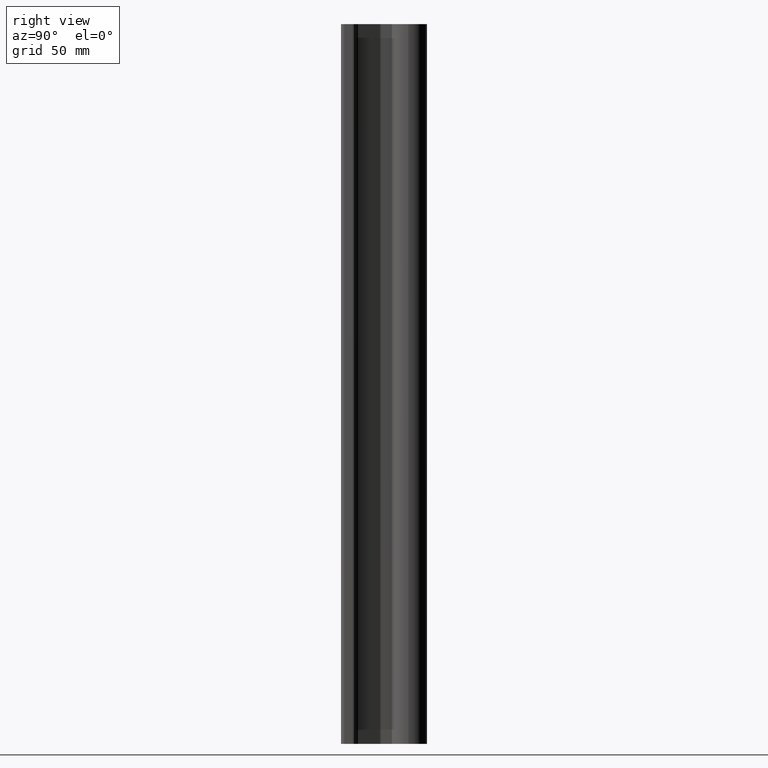
[diagram: clean part render]
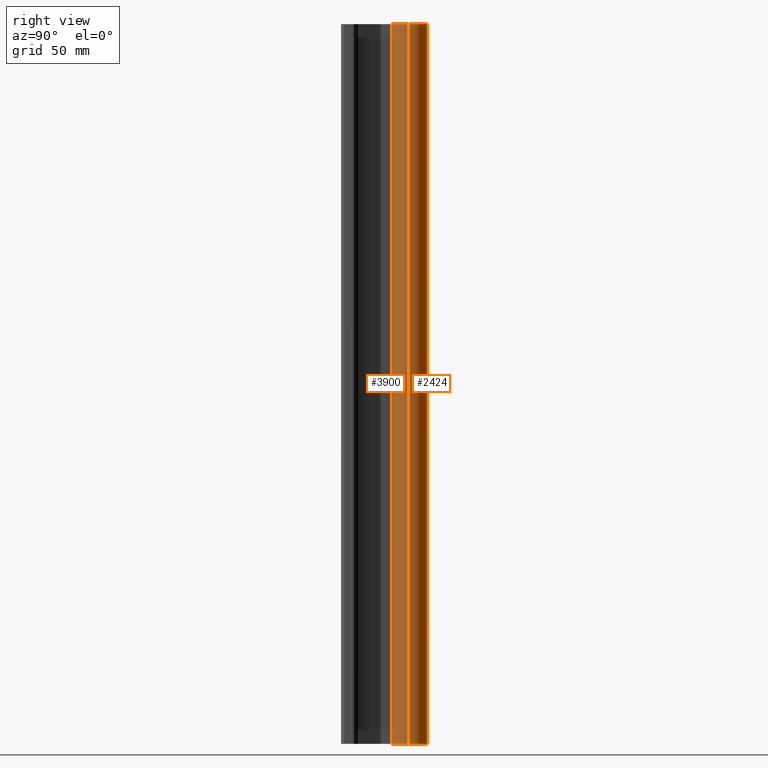
[diagram: same view with one multi-face feature highlighted, each face labeled with its STEP entity id]
A machine part, right view. The highlighted faces form ONE feature: a constant-radius fillet chain: 2 tangent blend faces with common blend radius 7.9375 mm. The faces share edges in the B-rep.
Their STEP definitions:
[1] entity #3900 (Cylinder):
#26 = B_SPLINE_CURVE_WITH_KNOTS ( 'NONE', 3,
 ( #3919, #3263, #6905, #351, #4456, #6239, #1460, #786, #4540, #1421, #3339, #5782, #858, #7544, #3961, #3297, #2747, #5669, #312, #7499, #941, #7464, #2056, #195, #5068, #2635, #5187, #7587, #6323, #2125 ),
 .UNSPECIFIED., .F., .F.,
 ( 4, 2, 2, 2, 2, 2, 2, 2, 2, 2, 2, 2, 2, 2, 4 ),
 ( 0.007508452367745338182, 0.008446756409244972688, 0.008915908429994788206, 0.009385060450744603724, 0.009854212471494417508, 0.01032336449224423303, 0.01079251651299404854, 0.01126166853374386406, 0.01173082055449367958, 0.01219997257524349510, 0.01313827661674312614, 0.01360742863749294165, 0.01407658065824275717, 0.01454573267899257269, 0.01501488469974238821 ),
 .UNSPECIFIED. ) ;
#64 = CARTESIAN_POINT ( 'NONE',  ( -0.08209296015616003583, 0.8234358842663974665, -5.047396330322444946 ) ) ;
#195 = CARTESIAN_POINT ( 'NONE',  ( 0.04720408787751076418, 0.8160425046014818662, -1.081519172924102490 ) ) ;
#206 = VERTEX_POINT ( 'NONE', #3529 ) ;
#291 = CARTESIAN_POINT ( 'NONE',  ( 0.006248130838341097240, 0.8125000000000004441, -9.094000000000004746 ) ) ;
#312 = CARTESIAN_POINT ( 'NONE',  ( 0.08915249567970547073, 0.8254769057181347014, -1.030420745336931621 ) ) ;
#351 = CARTESIAN_POINT ( 'NONE',  ( 0.04174469723951397537, 0.8152482140724262027, -0.9155545634229914631 ) ) ;
#360 = CARTESIAN_POINT ( 'NONE',  ( -0.07510743548941764547, 0.8215319702436250093, -9.057822074742654550 ) ) ;
#442 = CARTESIAN_POINT ( 'NONE',  ( 0.02448571958776037810, 0.8134019009169751735, -9.090964061280905284 ) ) ;
#447 = CARTESIAN_POINT ( 'NONE',  ( 0.04724576803369165412, 0.8160490580171795294, -8.918505836333379122 ) ) ;
#455 = CARTESIAN_POINT ( 'NONE',  ( -0.08209296015615998032, 0.8234358842663970224, -1.047396330322443836 ) ) ;
#495 = CARTESIAN_POINT ( 'NONE',  ( -0.08917577085278130533, 0.8254836531408548117, -0.9696361719165590420 ) ) ;
#518 = ORIENTED_EDGE ( 'NONE', *, *, #6420, .T. ) ;
#525 = CARTESIAN_POINT ( 'NONE',  ( 0.04182498381696470036, 0.8152589941655236094, -9.084406068499557563 ) ) ;
#545 = CARTESIAN_POINT ( 'NONE',  ( -0.06218625147563033168, 0.8187181843221623678, -5.070753091280488789 ) ) ;
#549 = CARTESIAN_POINT ( 'NONE',  ( 0.06212367018058409518, 0.8187050417628202181, -4.929188540159190168 ) ) ;
#583 = EDGE_CURVE ( 'NONE', #5415, #2526, #3723, .T. ) ;
#615 = CARTESIAN_POINT ( 'NONE',  ( -1.045985132074415829E-16, 0.8125000000000001110, -5.093999999999999417 ) ) ;
#665 = CARTESIAN_POINT ( 'NONE',  ( 0.07079793436574485788, 0.8205930284507833017, -4.937860916235941922 ) ) ;
#674 = EDGE_CURVE ( 'NONE', #3864, #6700, #6227, .T. ) ;
#741 = DIRECTION ( 'NONE',  ( 0.000000000000000000, 0.000000000000000000, 1.000000000000000000 ) ) ;
#786 = CARTESIAN_POINT ( 'NONE',  ( 0.07079793436574456644, 0.8205930284507831907, -0.9378609162359411444 ) ) ;
#811 = CARTESIAN_POINT ( 'NONE',  ( -0.3125000000000000000, 1.125000000000000222, -11.99999999999999822 ) ) ;
#858 = CARTESIAN_POINT ( 'NONE',  ( 0.09095975716276100131, 0.8260281468790587889, -0.9755038062707838131 ) ) ;
#925 = AXIS2_PLACEMENT_3D ( 'NONE', #3380, #5302, #1579 ) ;
#941 = CARTESIAN_POINT ( 'NONE',  ( 0.07510757727267905470, 0.8215320241521085753, -1.057821730578282660 ) ) ;
#943 = B_SPLINE_CURVE_WITH_KNOTS ( 'NONE', 3,
 ( #6846, #3907, #6888, #6547, #3992, #7732, #972, #4065, #3395, #5323, #455, #1603, #5842, #6506, #2926, #3473, #5209, #4720, #495, #2891, #2268, #7076, #4601, #7691, #3515, #4109, #1636, #6999, #7117, #6957 ),
 .UNSPECIFIED., .F., .F.,
 ( 4, 2, 2, 2, 2, 2, 2, 2, 2, 2, 2, 2, 2, 2, 4 ),
 ( 2.827876233278883370E-19, 0.0004692782729840807633, 0.0009385565459681613097, 0.001407834818952241693, 0.001877113091936322186, 0.002815669637904491193, 0.003284947910888575372, 0.003754226183872660418, 0.004223504456856744596, 0.004692782729840828775, 0.005631339275808998866, 0.006100617548793083045, 0.006569895821777167223, 0.007039174094761253136, 0.007508452367745338182 ),
 .UNSPECIFIED. ) ;
#957 = EDGE_LOOP ( 'NONE', ( #518, #3695 ) ) ;
#964 = VERTEX_POINT ( 'NONE', #2792 ) ;
#972 = CARTESIAN_POINT ( 'NONE',  ( -0.04719947330657274509, 0.8160417891568694237, -1.081521885796496774 ) ) ;
#1031 = CARTESIAN_POINT ( 'NONE',  ( -0.03044423128482891608, 0.8139338484542095742, -9.089146305765225975 ) ) ;
#1066 = CARTESIAN_POINT ( 'NONE',  ( -0.06218625147563035249, 0.8187181843221625899, -9.070753091280488789 ) ) ;
#1073 = CARTESIAN_POINT ( 'NONE',  ( 0.09337431156350314843, 0.8267734345808207541, -8.987550949017309776 ) ) ;
#1105 = CARTESIAN_POINT ( 'NONE',  ( -0.04719947330657309204, 0.8160417891568693127, -9.081521885796497884 ) ) ;
#1109 = CARTESIAN_POINT ( 'NONE',  ( 0.04720408787751050744, 0.8160425046014818662, -9.081519172924101824 ) ) ;
#1145 = CARTESIAN_POINT ( 'NONE',  ( 0.07472214623426198798, 0.8215447097984076574, -8.942643660028952723 ) ) ;
#1165 = CARTESIAN_POINT ( 'NONE',  ( -0.02453868079496402885, 0.8134055614502636589, -4.909048392997517496 ) ) ;
#1169 = CARTESIAN_POINT ( 'NONE',  ( 0.07472214623426201574, 0.8215447097984078795, -4.942643660028956276 ) ) ;
#1213 = CARTESIAN_POINT ( 'NONE',  ( 2.338341473806063536E-15, 0.8125000000000001110, -4.905999999999999694 ) ) ;
#1217 = CARTESIAN_POINT ( 'NONE',  ( 0.01239471305407809781, 0.8126871810120626094, -5.093382985584919531 ) ) ;
#1223 = EDGE_CURVE ( 'NONE', #206, #6339, #4767, .T. ) ;
#1252 = CARTESIAN_POINT ( 'NONE',  ( -0.05739900808181976760, 0.8177734638920224342, -4.925309107502875428 ) ) ;
#1319 = CARTESIAN_POINT ( 'NONE',  ( 0.3125000000000000000, 1.125000000000000222, -11.99999999999999822 ) ) ;
#1331 = CARTESIAN_POINT ( 'NONE',  ( 2.338341473811032571E-15, 0.8125000000000001110, -0.9060000000000000275 ) ) ;
#1421 = CARTESIAN_POINT ( 'NONE',  ( 0.08150333686740518502, 0.8232953126504902741, -0.9527733660716006803 ) ) ;
#1460 = CARTESIAN_POINT ( 'NONE',  ( 0.06212367018058380375, 0.8187050417628198851, -0.9291885401591875038 ) ) ;
#1462 = DIRECTION ( 'NONE',  ( 1.000000000000000000, 0.000000000000000000, 0.000000000000000000 ) ) ;
#1473 = DIRECTION ( 'NONE',  ( 1.000000000000000000, 0.000000000000000000, 0.000000000000000000 ) ) ;
#1554 = CARTESIAN_POINT ( 'NONE',  ( -0.09339241607760490060, 0.8267790747123383577, -9.012338790927183041 ) ) ;
#1567 = CIRCLE ( 'NONE', #7011, 0.3125000000000000000 ) ;
#1579 = DIRECTION ( 'NONE',  ( 1.000000000000000000, 0.000000000000000000, 0.000000000000000000 ) ) ;
#1593 = CARTESIAN_POINT ( 'NONE',  ( -1.080651164257120767E-16, 0.8125000000000001110, -9.093999999999999417 ) ) ;
#1603 = CARTESIAN_POINT ( 'NONE',  ( -0.08914055491288604138, 0.8254733877079193372, -1.030452882107137258 ) ) ;
#1636 = CARTESIAN_POINT ( 'NONE',  ( -0.02453868079496407048, 0.8134055614502636589, -0.9090483929975167188 ) ) ;
#1670 = CARTESIAN_POINT ( 'NONE',  ( 0.09400044720055691916, 0.8269728771968642977, -9.006188737062908345 ) ) ;
#1703 = CARTESIAN_POINT ( 'NONE',  ( -0.02453868079496425089, 0.8134055614502636589, -8.909048392997515720 ) ) ;
#1709 = CARTESIAN_POINT ( 'NONE',  ( 0.08440922261781196034, 0.8241055286361974597, -8.958172225124982901 ) ) ;
#1710 = VERTEX_POINT ( 'NONE', #1331 ) ;
#1748 = CARTESIAN_POINT ( 'NONE',  ( 0.01231323883885350988, 0.8124999999999998890, -8.905999999999998806 ) ) ;
#1756 = CARTESIAN_POINT ( 'NONE',  ( -0.006249812255970017306, 0.8125000000000003331, -5.093999999999999417 ) ) ;
#1760 = CARTESIAN_POINT ( 'NONE',  ( 0.09098059252350355897, 0.8260344883912750236, -5.024426775340547380 ) ) ;
#1797 = EDGE_CURVE ( 'NONE', #7013, #1710, #943, .T. ) ;
#1989 = FACE_BOUND ( 'NONE', #4482, .T. ) ;
#2056 = CARTESIAN_POINT ( 'NONE',  ( 0.05739462601868267067, 0.8177723697655944202, -1.074695772107617353 ) ) ;
#2125 = CARTESIAN_POINT ( 'NONE',  ( 1.146594018805965782E-17, 0.8125000000000001110, -1.094000000000000083 ) ) ;
#2181 = CARTESIAN_POINT ( 'NONE',  ( -0.09096390808720972165, 0.8260294013101278088, -8.975514245131954283 ) ) ;
#2268 = CARTESIAN_POINT ( 'NONE',  ( -0.07512422930621723283, 0.8215342271043933886, -0.9421824476986193631 ) ) ;
#2301 = CARTESIAN_POINT ( 'NONE',  ( -0.08205196841644292471, 0.8234238652493768296, -8.952496367178270020 ) ) ;
#2307 = CARTESIAN_POINT ( 'NONE',  ( 0.07510757727267844408, 0.8215320241521085753, -9.057821730578282882 ) ) ;
#2319 = CARTESIAN_POINT ( 'NONE',  ( -0.04719947330657309204, 0.8160417891568693127, -5.081521885796496107 ) ) ;
#2327 = EDGE_LOOP ( 'NONE', ( #6879, #6726 ) ) ;
#2360 = CARTESIAN_POINT ( 'NONE',  ( -0.03044423128482890220, 0.8139338484542095742, -5.089146305765224199 ) ) ;
#2526 = VERTEX_POINT ( 'NONE', #4015 ) ;
#2635 = CARTESIAN_POINT ( 'NONE',  ( 0.03048761765259820275, 0.8139383901274355182, -1.089130347473297400 ) ) ;
#2747 = CARTESIAN_POINT ( 'NONE',  ( 0.09339431365803435581, 0.8267796996786788144, -1.012314127894822890 ) ) ;
#2792 = CARTESIAN_POINT ( 'NONE',  ( 2.338341473806063536E-15, 0.8125000000000001110, -4.905999999999999694 ) ) ;
#2795 = CARTESIAN_POINT ( 'NONE',  ( -0.08914055491288608302, 0.8254733877079195592, -9.030452882107139700 ) ) ;
#2891 = CARTESIAN_POINT ( 'NONE',  ( -0.08205196841644323003, 0.8234238652493767185, -0.9524963671782694652 ) ) ;
#2915 = CARTESIAN_POINT ( 'NONE',  ( -0.01238818596634522380, 0.8126871738412412283, -9.093382963279672992 ) ) ;
#2926 = CARTESIAN_POINT ( 'NONE',  ( -0.09399715238152347996, 0.8269718379867129210, -1.006214888037960886 ) ) ;
#2950 = CARTESIAN_POINT ( 'NONE',  ( -0.006158276210661175858, 0.8125000000000003331, -8.906000000000002359 ) ) ;
#2972 = CARTESIAN_POINT ( 'NONE',  ( -0.09400282774607446323, 0.8269736280383976901, -4.993871552814814763 ) ) ;
#2977 = CARTESIAN_POINT ( 'NONE',  ( 0.09399955230915864324, 0.8269725949415090982, -4.993797685430720890 ) ) ;
#3018 = CARTESIAN_POINT ( 'NONE',  ( 0.04174469723951405864, 0.8152482140724260917, -4.915554563422992018 ) ) ;
#3053 = CARTESIAN_POINT ( 'NONE',  ( 0.07510757727267843020, 0.8215320241521085753, -5.057821730578285546 ) ) ;
#3100 = CARTESIAN_POINT ( 'NONE',  ( 0.08915249567970554012, 0.8254769057181348124, -5.030420745336932065 ) ) ;
#3229 = B_SPLINE_CURVE_WITH_KNOTS ( 'NONE', 3,
 ( #1593, #5833, #2915, #4053, #1031, #6578, #1105, #3460, #1066, #360, #3502, #2795, #5274, #1554, #5230, #7644, #7752, #2181, #7679, #2301, #3533, #4632, #7026, #4753, #4673, #7148, #1703, #4139, #2950, #4020 ),
 .UNSPECIFIED., .F., .F.,
 ( 4, 2, 2, 2, 2, 2, 2, 2, 2, 2, 2, 2, 2, 2, 4 ),
 ( 2.665239564959767993E-18, 0.0004692782729840856964, 0.0009385565459681685738, 0.001407834818952251451, 0.001877113091936334112, 0.002815669637904500301, 0.003284947910888583178, 0.003754226183872666055, 0.004223504456856748933, 0.004692782729840832244, 0.005631339275809000601, 0.006100617548793083912, 0.006569895821777166356, 0.007039174094761249667, 0.007508452367745332978 ),
 .UNSPECIFIED. ) ;
#3263 = CARTESIAN_POINT ( 'NONE',  ( 0.01231323883885351855, 0.8125000000000003331, -0.9060000000000002496 ) ) ;
#3274 = FACE_BOUND ( 'NONE', #2327, .T. ) ;
#3297 = CARTESIAN_POINT ( 'NONE',  ( 0.09400044720055693304, 0.8269728771968641867, -1.006188737062911231 ) ) ;
#3339 = CARTESIAN_POINT ( 'NONE',  ( 0.08440922261781221014, 0.8241055286361979038, -0.9581722251249868982 ) ) ;
#3380 = CARTESIAN_POINT ( 'NONE',  ( 0.000000000000000000, 1.125000000000000222, 0.000000000000000000 ) ) ;
#3395 = CARTESIAN_POINT ( 'NONE',  ( -0.06218625147563049821, 0.8187181843221625899, -1.070753091280487013 ) ) ;
#3460 = CARTESIAN_POINT ( 'NONE',  ( -0.05739126467442233481, 0.8177717313350275630, -9.074698399469506072 ) ) ;
#3464 = CARTESIAN_POINT ( 'NONE',  ( 2.338341473826934034E-15, 0.8125000000000001110, -8.906000000000000583 ) ) ;
#3473 = CARTESIAN_POINT ( 'NONE',  ( -0.09400282774607450487, 0.8269736280383979121, -0.9938715528148166500 ) ) ;
#3475 = CARTESIAN_POINT ( 'NONE',  ( -1.045985132074415829E-16, 0.8125000000000001110, -5.093999999999999417 ) ) ;
#3502 = CARTESIAN_POINT ( 'NONE',  ( -0.08209296015615999420, 0.8234358842663974665, -9.047396330322445834 ) ) ;
#3515 = CARTESIAN_POINT ( 'NONE',  ( -0.04173497841402686731, 0.8152469103071935397, -0.9155498031650619595 ) ) ;
#3529 = CARTESIAN_POINT ( 'NONE',  ( 2.338341473826934034E-15, 0.8125000000000001110, -8.906000000000000583 ) ) ;
#3533 = CARTESIAN_POINT ( 'NONE',  ( -0.07512422930621692752, 0.8215342271043933886, -8.942182447698618475 ) ) ;
#3551 = CARTESIAN_POINT ( 'NONE',  ( -0.01238818596634522207, 0.8126871738412414503, -5.093382963279673881 ) ) ;
#3583 = CARTESIAN_POINT ( 'NONE',  ( 0.09095975716276109846, 0.8260281468790587889, -8.975503806270783258 ) ) ;
#3602 = CARTESIAN_POINT ( 'NONE',  ( 0.06218734984264769755, 0.8187184119934811655, -5.070752093200542987 ) ) ;
#3644 = CARTESIAN_POINT ( 'NONE',  ( 0.08150333686740557360, 0.8232953126504904962, -4.952773366071601124 ) ) ;
#3674 = CARTESIAN_POINT ( 'NONE',  ( -0.06210710162732828443, 0.8187016540781720808, -4.929173890949760661 ) ) ;
#3695 = ORIENTED_EDGE ( 'NONE', *, *, #1223, .T. ) ;
#3723 = LINE ( 'NONE', #3767, #6355 ) ;
#3726 = CARTESIAN_POINT ( 'NONE',  ( 0.05739462601868246250, 0.8177723697655946422, -5.074695772107620684 ) ) ;
#3767 = CARTESIAN_POINT ( 'NONE',  ( 0.3125000000000000000, 1.125000000000000222, -11.99999999999999822 ) ) ;
#3769 = CARTESIAN_POINT ( 'NONE',  ( 0.04182498381696469342, 0.8152589941655234984, -5.084406068499561115 ) ) ;
#3795 = CARTESIAN_POINT ( 'NONE',  ( 1.146594018805965782E-17, 0.8125000000000001110, -1.094000000000000083 ) ) ;
#3864 = VERTEX_POINT ( 'NONE', #4961 ) ;
#3893 = B_SPLINE_CURVE_WITH_KNOTS ( 'NONE', 3,
 ( #4199, #5583, #6709, #3018, #6121, #6630, #549, #665, #1169, #3644, #4330, #7372, #6087, #4977, #2977, #6745, #5410, #1760, #3100, #5538, #3053, #3602, #3726, #6672, #3769, #6163, #6049, #1217, #7824, #7252 ),
 .UNSPECIFIED., .F., .F.,
 ( 4, 2, 2, 2, 2, 2, 2, 2, 2, 2, 2, 2, 2, 2, 4 ),
 ( 0.007508452367745332111, 0.008446756409244922381, 0.008915908429994724022, 0.009385060450744527397, 0.009854212471494329037, 0.01032336449224413241, 0.01079251651299393405, 0.01126166853374373569, 0.01173082055449353907, 0.01219997257524334244, 0.01313827661674302205, 0.01360742863749286186, 0.01407658065824270166, 0.01454573267899254146, 0.01501488469974238127 ),
 .UNSPECIFIED. ) ;
#3895 = FACE_OUTER_BOUND ( 'NONE', #5074, .T. ) ;
#3900 = ADVANCED_FACE ( 'NONE', ( #3895, #3274, #1989, #5716 ), #4507, .T. ) ;
#3907 = CARTESIAN_POINT ( 'NONE',  ( -0.006249812255970039858, 0.8125000000000000000, -1.093999999999999861 ) ) ;
#3919 = CARTESIAN_POINT ( 'NONE',  ( 2.338341473811032571E-15, 0.8125000000000001110, -0.9060000000000000275 ) ) ;
#3961 = CARTESIAN_POINT ( 'NONE',  ( 0.09399955230915864324, 0.8269725949415089872, -0.9937976854307205565 ) ) ;
#3967 = CIRCLE ( 'NONE', #925, 0.3125000000000000000 ) ;
#3992 = CARTESIAN_POINT ( 'NONE',  ( -0.03044423128482850668, 0.8139338484542096852, -1.089146305765224199 ) ) ;
#4015 = CARTESIAN_POINT ( 'NONE',  ( 0.3125000000000000000, 1.125000000000000222, 0.000000000000000000 ) ) ;
#4020 = CARTESIAN_POINT ( 'NONE',  ( 2.338341473826934034E-15, 0.8125000000000001110, -8.906000000000000583 ) ) ;
#4053 = CARTESIAN_POINT ( 'NONE',  ( -0.02445328354005015664, 0.8133996061316386417, -9.090971874260890928 ) ) ;
#4065 = CARTESIAN_POINT ( 'NONE',  ( -0.05739126467442198787, 0.8177717313350273409, -1.074698399469502297 ) ) ;
#4101 = CARTESIAN_POINT ( 'NONE',  ( 0.09339431365803423091, 0.8267796996786783703, -9.012314127894820004 ) ) ;
#4109 = CARTESIAN_POINT ( 'NONE',  ( -0.03040333002857185593, 0.8139301967071819188, -0.9108412556624257972 ) ) ;
#4112 = ORIENTED_EDGE ( 'NONE', *, *, #583, .T. ) ;
#4113 = CARTESIAN_POINT ( 'NONE',  ( -0.09339241607760492836, 0.8267790747123385797, -5.012338790927184817 ) ) ;
#4139 = CARTESIAN_POINT ( 'NONE',  ( -0.01239589557352069847, 0.8126867233638430665, -8.906615400389453541 ) ) ;
#4143 = CARTESIAN_POINT ( 'NONE',  ( 0.05739462601868247638, 0.8177723697655944202, -9.074695772107617131 ) ) ;
#4153 = CARTESIAN_POINT ( 'NONE',  ( -0.09399715238152353547, 0.8269718379867130320, -5.006214888037961330 ) ) ;
#4178 = CARTESIAN_POINT ( 'NONE',  ( 0.07079793436574481624, 0.8205930284507830796, -8.937860916235939257 ) ) ;
#4191 = CARTESIAN_POINT ( 'NONE',  ( -0.09096485890362786264, 0.8260296701930365249, -5.024490479517567110 ) ) ;
#4199 = CARTESIAN_POINT ( 'NONE',  ( 2.338341473806063536E-15, 0.8125000000000001110, -4.905999999999999694 ) ) ;
#4330 = CARTESIAN_POINT ( 'NONE',  ( 0.08440922261781196034, 0.8241055286361973486, -4.958172225124985566 ) ) ;
#4456 = CARTESIAN_POINT ( 'NONE',  ( 0.04724576803369132105, 0.8160490580171793074, -0.9185058363333786779 ) ) ;
#4482 = EDGE_LOOP ( 'NONE', ( #6289, #5820 ) ) ;
#4500 = DIRECTION ( 'NONE',  ( 0.000000000000000000, 0.000000000000000000, 1.000000000000000000 ) ) ;
#4507 = CYLINDRICAL_SURFACE ( 'NONE', #5686, 0.3125000000000000000 ) ;
#4540 = CARTESIAN_POINT ( 'NONE',  ( 0.07472214623426144675, 0.8215447097984075464, -0.9426436600289525014 ) ) ;
#4601 = CARTESIAN_POINT ( 'NONE',  ( -0.05739900808181990638, 0.8177734638920224342, -0.9253091075028754275 ) ) ;
#4632 = CARTESIAN_POINT ( 'NONE',  ( -0.06210710162732826362, 0.8187016540781720808, -8.929173890949760661 ) ) ;
#4635 = CARTESIAN_POINT ( 'NONE',  ( -1.080651164257120767E-16, 0.8125000000000001110, -9.093999999999999417 ) ) ;
#4673 = CARTESIAN_POINT ( 'NONE',  ( -0.04173497841402697139, 0.8152469103071935397, -8.915549803165061959 ) ) ;
#4720 = CARTESIAN_POINT ( 'NONE',  ( -0.09096390808720984655, 0.8260294013101278088, -0.9755142451319538388 ) ) ;
#4753 = CARTESIAN_POINT ( 'NONE',  ( -0.04724092479732521638, 0.8160484089020145770, -8.918503554831593405 ) ) ;
#4756 = CARTESIAN_POINT ( 'NONE',  ( 0.06218734984264771143, 0.8187184119934810544, -9.070752093200542987 ) ) ;
#4767 = B_SPLINE_CURVE_WITH_KNOTS ( 'NONE', 3,
 ( #3464, #1748, #5985, #5910, #447, #5346, #6608, #4178, #1145, #5318, #1709, #7104, #3583, #1073, #6027, #1670, #4101, #7845, #7757, #6542, #2307, #4756, #4143, #1109, #525, #7606, #442, #6952, #291, #4635 ),
 .UNSPECIFIED., .F., .F.,
 ( 4, 2, 2, 2, 2, 2, 2, 2, 2, 2, 2, 2, 2, 2, 4 ),
 ( 0.007508452367745332978, 0.008446756409244965749, 0.008915908429994798615, 0.009385060450744631480, 0.009854212471494462611, 0.01032336449224429548, 0.01079251651299412834, 0.01126166853374395947, 0.01173082055449379060, 0.01219997257524362347, 0.01313827661674320940, 0.01360742863749300410, 0.01407658065824279534, 0.01454573267899258830, 0.01501488469974237953 ),
 .UNSPECIFIED. ) ;
#4771 = CARTESIAN_POINT ( 'NONE',  ( -0.05739126467442230012, 0.8177717313350276740, -5.074698399469503407 ) ) ;
#4939 = EDGE_CURVE ( 'NONE', #1710, #7013, #26, .T. ) ;
#4961 = CARTESIAN_POINT ( 'NONE',  ( -0.3125000000000000000, 1.125000000000000222, -11.99999999999999822 ) ) ;
#4977 = CARTESIAN_POINT ( 'NONE',  ( 0.09337431156350314843, 0.8267734345808209762, -4.987550949017310664 ) ) ;
#5042 = CARTESIAN_POINT ( 'NONE',  ( -1.080651164257120767E-16, 0.8125000000000001110, -9.093999999999999417 ) ) ;
#5057 = DIRECTION ( 'NONE',  ( 0.000000000000000000, 0.000000000000000000, 1.000000000000000000 ) ) ;
#5068 = CARTESIAN_POINT ( 'NONE',  ( 0.04182498381696508893, 0.8152589941655237205, -1.084406068499560227 ) ) ;
#5074 = EDGE_LOOP ( 'NONE', ( #7300, #6489, #4112, #5735 ) ) ;
#5132 = EDGE_CURVE ( 'NONE', #964, #7846, #3893, .T. ) ;
#5154 = DIRECTION ( 'NONE',  ( 0.000000000000000000, 0.000000000000000000, 1.000000000000000000 ) ) ;
#5187 = CARTESIAN_POINT ( 'NONE',  ( 0.02448571958776040933, 0.8134019009169753955, -1.090964061280904840 ) ) ;
#5209 = CARTESIAN_POINT ( 'NONE',  ( -0.09338228139797870309, 0.8267759215348504664, -0.9876010368633055814 ) ) ;
#5230 = CARTESIAN_POINT ( 'NONE',  ( -0.09399715238152353547, 0.8269718379867129210, -9.006214888037961330 ) ) ;
#5236 = VECTOR ( 'NONE', #5057, 39.37007874015748143 ) ;
#5274 = CARTESIAN_POINT ( 'NONE',  ( -0.09096485890362790427, 0.8260296701930366359, -9.024490479517568886 ) ) ;
#5302 = DIRECTION ( 'NONE',  ( 0.000000000000000000, 0.000000000000000000, 1.000000000000000000 ) ) ;
#5318 = CARTESIAN_POINT ( 'NONE',  ( 0.08150333686740558747, 0.8232953126504903851, -8.952773366071600236 ) ) ;
#5323 = CARTESIAN_POINT ( 'NONE',  ( -0.07510743548941777037, 0.8215319702436248983, -1.057822074742651441 ) ) ;
#5346 = CARTESIAN_POINT ( 'NONE',  ( 0.05741460662031064310, 0.8177762865666119430, -8.925320523197802558 ) ) ;
#5364 = CARTESIAN_POINT ( 'NONE',  ( -0.08914055491288611077, 0.8254733877079193372, -5.030452882107137924 ) ) ;
#5410 = CARTESIAN_POINT ( 'NONE',  ( 0.09339431365803423091, 0.8267796996786783703, -5.012314127894822668 ) ) ;
#5415 = VERTEX_POINT ( 'NONE', #1319 ) ;
#5451 = CARTESIAN_POINT ( 'NONE',  ( -0.01239589557352055102, 0.8126867233638429555, -4.906615400389456205 ) ) ;
#5533 = CARTESIAN_POINT ( 'NONE',  ( -0.03040333002857168593, 0.8139301967071815858, -4.910841255662425908 ) ) ;
#5538 = CARTESIAN_POINT ( 'NONE',  ( 0.08209230001453897418, 0.8234355620191011749, -5.047404759354090942 ) ) ;
#5583 = CARTESIAN_POINT ( 'NONE',  ( 0.01231323883885349427, 0.8125000000000003331, -4.906000000000001471 ) ) ;
#5669 = CARTESIAN_POINT ( 'NONE',  ( 0.09098059252350371162, 0.8260344883912752456, -1.024426775340546492 ) ) ;
#5678 = CARTESIAN_POINT ( 'NONE',  ( 0.000000000000000000, 1.125000000000000222, -11.99999999999999822 ) ) ;
#5686 = AXIS2_PLACEMENT_3D ( 'NONE', #5678, #5154, #1473 ) ;
#5716 = FACE_BOUND ( 'NONE', #957, .T. ) ;
#5735 = ORIENTED_EDGE ( 'NONE', *, *, #6535, .F. ) ;
#5738 = EDGE_CURVE ( 'NONE', #3864, #5415, #1567, .T. ) ;
#5782 = CARTESIAN_POINT ( 'NONE',  ( 0.08917384013475646021, 0.8254830121748246707, -0.9696272186068002341 ) ) ;
#5820 = ORIENTED_EDGE ( 'NONE', *, *, #5132, .T. ) ;
#5833 = CARTESIAN_POINT ( 'NONE',  ( -0.006249812255970013837, 0.8125000000000003331, -9.093999999999999417 ) ) ;
#5842 = CARTESIAN_POINT ( 'NONE',  ( -0.09096485890362783489, 0.8260296701930366359, -1.024490479517565555 ) ) ;
#5910 = CARTESIAN_POINT ( 'NONE',  ( 0.04174469723951383660, 0.8152482140724260917, -8.915554563422990242 ) ) ;
#5985 = CARTESIAN_POINT ( 'NONE',  ( 0.02474633499646822915, 0.8132725173552960429, -8.908489208672182968 ) ) ;
#6027 = CARTESIAN_POINT ( 'NONE',  ( 0.09399955230915865712, 0.8269725949415090982, -8.993797685430720890 ) ) ;
#6049 = CARTESIAN_POINT ( 'NONE',  ( 0.02448571958776030871, 0.8134019009169751735, -5.090964061280906172 ) ) ;
#6087 = CARTESIAN_POINT ( 'NONE',  ( 0.09095975716276112621, 0.8260281468790590109, -4.975503806270785923 ) ) ;
#6121 = CARTESIAN_POINT ( 'NONE',  ( 0.04724576803369122391, 0.8160490580171794184, -4.918505836333379122 ) ) ;
#6163 = CARTESIAN_POINT ( 'NONE',  ( 0.03048761765259775519, 0.8139383901274351851, -5.089130347473296290 ) ) ;
#6227 = LINE ( 'NONE', #811, #5236 ) ;
#6239 = CARTESIAN_POINT ( 'NONE',  ( 0.05741460662031026840, 0.8177762865666114989, -0.9253205231977985612 ) ) ;
#6283 = CARTESIAN_POINT ( 'NONE',  ( 0.000000000000000000, 1.125000000000000222, -11.99999999999999822 ) ) ;
#6289 = ORIENTED_EDGE ( 'NONE', *, *, #6883, .T. ) ;
#6323 = CARTESIAN_POINT ( 'NONE',  ( 0.006248130838341092036, 0.8125000000000000000, -1.094000000000000083 ) ) ;
#6339 = VERTEX_POINT ( 'NONE', #5042 ) ;
#6355 = VECTOR ( 'NONE', #741, 39.37007874015748143 ) ;
#6420 = EDGE_CURVE ( 'NONE', #6339, #206, #3229, .T. ) ;
#6489 = ORIENTED_EDGE ( 'NONE', *, *, #5738, .T. ) ;
#6506 = CARTESIAN_POINT ( 'NONE',  ( -0.09339241607760477570, 0.8267790747123380246, -1.012338790927183485 ) ) ;
#6535 = EDGE_CURVE ( 'NONE', #6700, #2526, #3967, .T. ) ;
#6542 = CARTESIAN_POINT ( 'NONE',  ( 0.08209230001453894643, 0.8234355620191011749, -9.047404759354090942 ) ) ;
#6547 = CARTESIAN_POINT ( 'NONE',  ( -0.02445328354005005950, 0.8133996061316388637, -1.090971874260892927 ) ) ;
#6555 = CARTESIAN_POINT ( 'NONE',  ( -0.07512422930621695527, 0.8215342271043933886, -4.942182447698620251 ) ) ;
#6578 = CARTESIAN_POINT ( 'NONE',  ( -0.04181332792459531433, 0.8152571268553495676, -9.084413036066600000 ) ) ;
#6608 = CARTESIAN_POINT ( 'NONE',  ( 0.06212367018058408130, 0.8187050417628201071, -8.929188540159188392 ) ) ;
#6622 = CARTESIAN_POINT ( 'NONE',  ( -0.08205196841644293859, 0.8234238652493771626, -4.952496367178269132 ) ) ;
#6630 = CARTESIAN_POINT ( 'NONE',  ( 0.05741460662031024065, 0.8177762865666120540, -4.925320523197799893 ) ) ;
#6667 = CARTESIAN_POINT ( 'NONE',  ( -0.02445328354005016358, 0.8133996061316390858, -5.090971874260893593 ) ) ;
#6672 = CARTESIAN_POINT ( 'NONE',  ( 0.04720408787751050050, 0.8160425046014817552, -5.081519172924100936 ) ) ;
#6700 = VERTEX_POINT ( 'NONE', #7461 ) ;
#6703 = CARTESIAN_POINT ( 'NONE',  ( -0.09338228139797868921, 0.8267759215348506885, -4.987601036863305026 ) ) ;
#6709 = CARTESIAN_POINT ( 'NONE',  ( 0.02474633499646845813, 0.8132725173552961540, -4.908489208672184745 ) ) ;
#6726 = ORIENTED_EDGE ( 'NONE', *, *, #4939, .T. ) ;
#6728 = B_SPLINE_CURVE_WITH_KNOTS ( 'NONE', 3,
 ( #615, #1756, #3551, #6667, #2360, #7817, #2319, #4771, #545, #7288, #64, #5364, #4191, #4113, #4153, #2972, #6703, #7125, #7776, #6622, #6555, #3674, #1252, #7246, #7168, #5533, #1165, #5451, #7858, #1213 ),
 .UNSPECIFIED., .F., .F.,
 ( 4, 2, 2, 2, 2, 2, 2, 2, 2, 2, 2, 2, 2, 2, 4 ),
 ( 2.579741780300433435E-18, 0.0004692782729840666144, 0.0009385565459681306268, 0.001407834818952194856, 0.001877113091936258651, 0.002815669637904443922, 0.003284947910888537641, 0.003754226183872630494, 0.004223504456856723779, 0.004692782729840816631, 0.005631339275809004938, 0.006100617548793070034, 0.006569895821777157682, 0.007039174094761244463, 0.007508452367745332111 ),
 .UNSPECIFIED. ) ;
#6745 = CARTESIAN_POINT ( 'NONE',  ( 0.09400044720055690528, 0.8269728771968641867, -5.006188737062911898 ) ) ;
#6846 = CARTESIAN_POINT ( 'NONE',  ( 1.146594018805965782E-17, 0.8125000000000001110, -1.094000000000000083 ) ) ;
#6879 = ORIENTED_EDGE ( 'NONE', *, *, #1797, .T. ) ;
#6883 = EDGE_CURVE ( 'NONE', #7846, #964, #6728, .T. ) ;
#6888 = CARTESIAN_POINT ( 'NONE',  ( -0.01238818596634510411, 0.8126871738412412283, -1.093382963279674769 ) ) ;
#6905 = CARTESIAN_POINT ( 'NONE',  ( 0.02474633499646837140, 0.8132725173552963760, -0.9084892086721848559 ) ) ;
#6952 = CARTESIAN_POINT ( 'NONE',  ( 0.01239471305407811863, 0.8126871810120630535, -9.093382985584925748 ) ) ;
#6957 = CARTESIAN_POINT ( 'NONE',  ( 2.338341473811032571E-15, 0.8125000000000001110, -0.9060000000000000275 ) ) ;
#6999 = CARTESIAN_POINT ( 'NONE',  ( -0.01239589557352055275, 0.8126867233638429555, -0.9066154003894555391 ) ) ;
#7011 = AXIS2_PLACEMENT_3D ( 'NONE', #6283, #4500, #1462 ) ;
#7013 = VERTEX_POINT ( 'NONE', #3795 ) ;
#7026 = CARTESIAN_POINT ( 'NONE',  ( -0.05739900808181976760, 0.8177734638920224342, -8.925309107502876316 ) ) ;
#7076 = CARTESIAN_POINT ( 'NONE',  ( -0.06210710162732869383, 0.8187016540781721918, -0.9291738909497603283 ) ) ;
#7104 = CARTESIAN_POINT ( 'NONE',  ( 0.08917384013475629367, 0.8254830121748242266, -8.969627218606797570 ) ) ;
#7117 = CARTESIAN_POINT ( 'NONE',  ( -0.006158276210661194072, 0.8124999999999998890, -0.9059999999999996945 ) ) ;
#7125 = CARTESIAN_POINT ( 'NONE',  ( -0.09096390808720973553, 0.8260294013101279198, -4.975514245131953395 ) ) ;
#7148 = CARTESIAN_POINT ( 'NONE',  ( -0.03040333002857196695, 0.8139301967071815858, -8.910841255662425908 ) ) ;
#7168 = CARTESIAN_POINT ( 'NONE',  ( -0.04173497841402665220, 0.8152469103071935397, -4.915549803165061959 ) ) ;
#7246 = CARTESIAN_POINT ( 'NONE',  ( -0.04724092479732520944, 0.8160484089020145770, -4.918503554831591629 ) ) ;
#7252 = CARTESIAN_POINT ( 'NONE',  ( -1.045985132074415829E-16, 0.8125000000000001110, -5.093999999999999417 ) ) ;
#7288 = CARTESIAN_POINT ( 'NONE',  ( -0.07510743548941767322, 0.8215319702436254534, -5.057822074742652774 ) ) ;
#7300 = ORIENTED_EDGE ( 'NONE', *, *, #674, .F. ) ;
#7372 = CARTESIAN_POINT ( 'NONE',  ( 0.08917384013475634918, 0.8254830121748247818, -4.969627218606803787 ) ) ;
#7461 = CARTESIAN_POINT ( 'NONE',  ( -0.3125000000000000000, 1.125000000000000222, 0.000000000000000000 ) ) ;
#7464 = CARTESIAN_POINT ( 'NONE',  ( 0.06218734984264848165, 0.8187184119934814985, -1.070752093200540545 ) ) ;
#7499 = CARTESIAN_POINT ( 'NONE',  ( 0.08209230001453889092, 0.8234355620191015079, -1.047404759354089165 ) ) ;
#7544 = CARTESIAN_POINT ( 'NONE',  ( 0.09337431156350314843, 0.8267734345808208651, -0.9875509490173098870 ) ) ;
#7587 = CARTESIAN_POINT ( 'NONE',  ( 0.01239471305407818455, 0.8126871810120629425, -1.093382985584921530 ) ) ;
#7606 = CARTESIAN_POINT ( 'NONE',  ( 0.03048761765259777254, 0.8139383901274354072, -9.089130347473297178 ) ) ;
#7644 = CARTESIAN_POINT ( 'NONE',  ( -0.09400282774607442160, 0.8269736280383975791, -8.993871552814814763 ) ) ;
#7679 = CARTESIAN_POINT ( 'NONE',  ( -0.08917577085278118043, 0.8254836531408548117, -8.969636171916558709 ) ) ;
#7691 = CARTESIAN_POINT ( 'NONE',  ( -0.04724092479732534822, 0.8160484089020149101, -0.9185035548315921838 ) ) ;
#7732 = CARTESIAN_POINT ( 'NONE',  ( -0.04181332792459492576, 0.8152571268553496786, -1.084413036066600444 ) ) ;
#7752 = CARTESIAN_POINT ( 'NONE',  ( -0.09338228139797868921, 0.8267759215348504664, -8.987601036863305026 ) ) ;
#7757 = CARTESIAN_POINT ( 'NONE',  ( 0.08915249567970555400, 0.8254769057181350345, -9.030420745336934729 ) ) ;
#7776 = CARTESIAN_POINT ( 'NONE',  ( -0.08917577085278118043, 0.8254836531408548117, -4.969636171916559597 ) ) ;
#7817 = CARTESIAN_POINT ( 'NONE',  ( -0.04181332792459532127, 0.8152571268553496786, -5.084413036066601776 ) ) ;
#7824 = CARTESIAN_POINT ( 'NONE',  ( 0.006248130838341072954, 0.8125000000000001110, -5.093999999999998529 ) ) ;
#7845 = CARTESIAN_POINT ( 'NONE',  ( 0.09098059252350353121, 0.8260344883912750236, -9.024426775340547380 ) ) ;
#7846 = VERTEX_POINT ( 'NONE', #3475 ) ;
#7858 = CARTESIAN_POINT ( 'NONE',  ( -0.006158276210661158510, 0.8125000000000000000, -4.905999999999998806 ) ) ;
[2] entity #2424 (Cylinder):
#372 = AXIS2_PLACEMENT_3D ( 'NONE', #5730, #930, #7043 ) ;
#477 = CARTESIAN_POINT ( 'NONE',  ( 0.000000000000000000, 1.125000000000000222, -11.99999999999999822 ) ) ;
#583 = EDGE_CURVE ( 'NONE', #5415, #2526, #3723, .T. ) ;
#674 = EDGE_CURVE ( 'NONE', #3864, #6700, #6227, .T. ) ;
#741 = DIRECTION ( 'NONE',  ( 0.000000000000000000, 0.000000000000000000, 1.000000000000000000 ) ) ;
#768 = CARTESIAN_POINT ( 'NONE',  ( 0.000000000000000000, 1.125000000000000222, -11.99999999999999822 ) ) ;
#811 = CARTESIAN_POINT ( 'NONE',  ( -0.3125000000000000000, 1.125000000000000222, -11.99999999999999822 ) ) ;
#930 = DIRECTION ( 'NONE',  ( 0.000000000000000000, 0.000000000000000000, 1.000000000000000000 ) ) ;
#1319 = CARTESIAN_POINT ( 'NONE',  ( 0.3125000000000000000, 1.125000000000000222, -11.99999999999999822 ) ) ;
#1961 = DIRECTION ( 'NONE',  ( 0.000000000000000000, 0.000000000000000000, 1.000000000000000000 ) ) ;
#2041 = DIRECTION ( 'NONE',  ( 1.000000000000000000, 0.000000000000000000, 0.000000000000000000 ) ) ;
#2424 = ADVANCED_FACE ( 'NONE', ( #4905 ), #5223, .T. ) ;
#2462 = CIRCLE ( 'NONE', #4107, 0.3125000000000000000 ) ;
#2526 = VERTEX_POINT ( 'NONE', #4015 ) ;
#2631 = AXIS2_PLACEMENT_3D ( 'NONE', #477, #3496, #7020 ) ;
#2762 = ORIENTED_EDGE ( 'NONE', *, *, #6967, .T. ) ;
#3430 = EDGE_CURVE ( 'NONE', #2526, #6700, #5104, .T. ) ;
#3496 = DIRECTION ( 'NONE',  ( 0.000000000000000000, 0.000000000000000000, 1.000000000000000000 ) ) ;
#3723 = LINE ( 'NONE', #3767, #6355 ) ;
#3767 = CARTESIAN_POINT ( 'NONE',  ( 0.3125000000000000000, 1.125000000000000222, -11.99999999999999822 ) ) ;
#3812 = ORIENTED_EDGE ( 'NONE', *, *, #583, .F. ) ;
#3864 = VERTEX_POINT ( 'NONE', #4961 ) ;
#4015 = CARTESIAN_POINT ( 'NONE',  ( 0.3125000000000000000, 1.125000000000000222, 0.000000000000000000 ) ) ;
#4107 = AXIS2_PLACEMENT_3D ( 'NONE', #768, #1961, #2041 ) ;
#4905 = FACE_OUTER_BOUND ( 'NONE', #7269, .T. ) ;
#4961 = CARTESIAN_POINT ( 'NONE',  ( -0.3125000000000000000, 1.125000000000000222, -11.99999999999999822 ) ) ;
#5057 = DIRECTION ( 'NONE',  ( 0.000000000000000000, 0.000000000000000000, 1.000000000000000000 ) ) ;
#5104 = CIRCLE ( 'NONE', #372, 0.3125000000000000000 ) ;
#5223 = CYLINDRICAL_SURFACE ( 'NONE', #2631, 0.3125000000000000000 ) ;
#5236 = VECTOR ( 'NONE', #5057, 39.37007874015748143 ) ;
#5415 = VERTEX_POINT ( 'NONE', #1319 ) ;
#5603 = ORIENTED_EDGE ( 'NONE', *, *, #3430, .F. ) ;
#5730 = CARTESIAN_POINT ( 'NONE',  ( 0.000000000000000000, 1.125000000000000222, 0.000000000000000000 ) ) ;
#6227 = LINE ( 'NONE', #811, #5236 ) ;
#6355 = VECTOR ( 'NONE', #741, 39.37007874015748143 ) ;
#6411 = ORIENTED_EDGE ( 'NONE', *, *, #674, .T. ) ;
#6700 = VERTEX_POINT ( 'NONE', #7461 ) ;
#6967 = EDGE_CURVE ( 'NONE', #5415, #3864, #2462, .T. ) ;
#7020 = DIRECTION ( 'NONE',  ( 1.000000000000000000, 0.000000000000000000, 0.000000000000000000 ) ) ;
#7043 = DIRECTION ( 'NONE',  ( 1.000000000000000000, 0.000000000000000000, 0.000000000000000000 ) ) ;
#7269 = EDGE_LOOP ( 'NONE', ( #2762, #6411, #5603, #3812 ) ) ;
#7461 = CARTESIAN_POINT ( 'NONE',  ( -0.3125000000000000000, 1.125000000000000222, 0.000000000000000000 ) ) ;